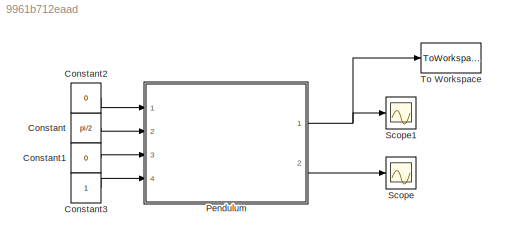
MODEL slx_9961b712eaad
KIND model
CONFIG AbsTol = auto
CONFIG EnableMultiTasking = off
CONFIG FixedStep = auto
CONFIG MaxStep = auto
CONFIG MinStep = auto
CONFIG RelTol = 1e-3
CONFIG SampleTimeConstraint = Unconstrained
CONFIG Solver = VariableStepAuto
CONFIG SolverName = VariableStepAuto
CONFIG StartTime = 0.0
CONFIG StopTime = 15
BLOCK [Constant] Constant
  Value = pi/2
BLOCK [Constant] Constant1
  Value = 0
BLOCK [Constant] Constant2
  Value = 0
BLOCK [Constant] Constant3
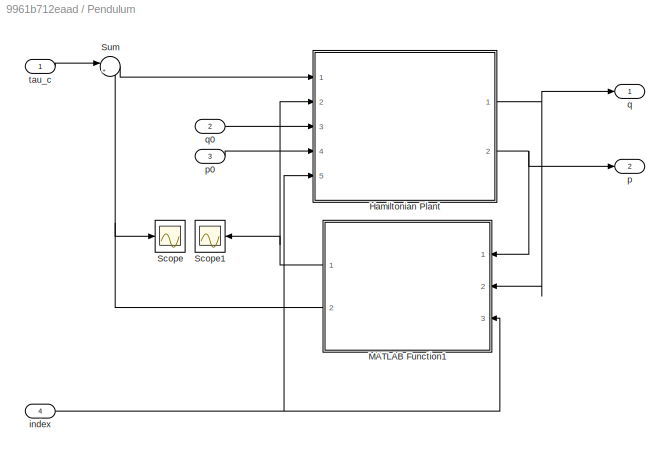
BLOCK [SubSystem] Pendulum
  Ports = [4, 2]
  RequestExecContextInheritance = off
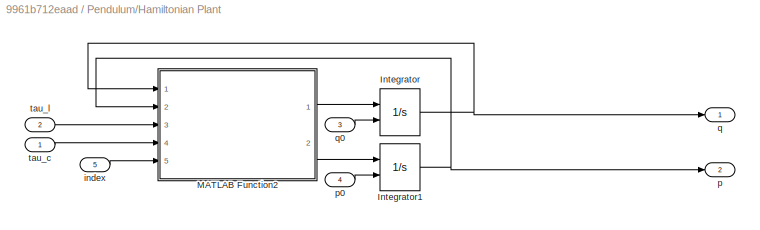
BLOCK [SubSystem] Pendulum/Hamiltonian Plant
  Ports = [5, 2]
  RequestExecContextInheritance = off
BLOCK [Integrator] Pendulum/Hamiltonian Plant/Integrator
  InitialCondition = q01
  InitialConditionSource = external
  Ports = [2, 1]
BLOCK [Integrator] Pendulum/Hamiltonian Plant/Integrator1
  InitialCondition = p02
  InitialConditionSource = external
  Ports = [2, 1]
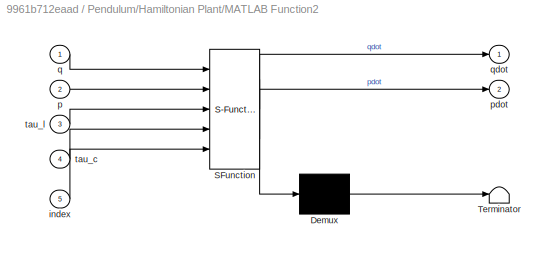
BLOCK [SubSystem] Pendulum/Hamiltonian Plant/MATLAB Function2
  ErrorFcn = Stateflow.Translate.translate
  PermitHierarchicalResolution = ExplicitOnly
  Ports = [5, 2]
  RequestExecContextInheritance = off
  SFBlockType = MATLAB Function
  TreatAsAtomicUnit = on
BLOCK [Demux] Pendulum/Hamiltonian Plant/MATLAB Function2/ Demux 
  Outputs = 1
  Ports = [1, 1]
BLOCK [S-Function] Pendulum/Hamiltonian Plant/MATLAB Function2/ SFunction 
  EnableBusSupport = on
  FunctionName = sf_sfun
  PortCounts = [5 3]
  Ports = [5, 3]
  SFcnIsStateOwnerBlock = off
  SFunctionDeploymentMode = off
  Tag = Stateflow S-Function SingleAgent_Pendulum 11
BLOCK [Terminator] Pendulum/Hamiltonian Plant/MATLAB Function2/ Terminator 
BLOCK [Inport] Pendulum/Hamiltonian Plant/MATLAB Function2/index
  IconDisplay = Port number
  Port = 5
BLOCK [Inport] Pendulum/Hamiltonian Plant/MATLAB Function2/p
  IconDisplay = Port number
  Port = 2
BLOCK [Outport] Pendulum/Hamiltonian Plant/MATLAB Function2/pdot
  IconDisplay = Port number
  Port = 2
BLOCK [Inport] Pendulum/Hamiltonian Plant/MATLAB Function2/q
  IconDisplay = Port number
BLOCK [Outport] Pendulum/Hamiltonian Plant/MATLAB Function2/qdot
  IconDisplay = Port number
BLOCK [Inport] Pendulum/Hamiltonian Plant/MATLAB Function2/tau_c
  IconDisplay = Port number
  Port = 4
BLOCK [Inport] Pendulum/Hamiltonian Plant/MATLAB Function2/tau_l
  IconDisplay = Port number
  Port = 3
BLOCK [Inport] Pendulum/Hamiltonian Plant/index
  IconDisplay = Port number
  Port = 5
BLOCK [Outport] Pendulum/Hamiltonian Plant/p
  IconDisplay = Port number
  Port = 2
BLOCK [Inport] Pendulum/Hamiltonian Plant/p0
  IconDisplay = Port number
  Port = 4
BLOCK [Outport] Pendulum/Hamiltonian Plant/q
  IconDisplay = Port number
BLOCK [Inport] Pendulum/Hamiltonian Plant/q0
  IconDisplay = Port number
  Port = 3
BLOCK [Inport] Pendulum/Hamiltonian Plant/tau_c
  IconDisplay = Port number
BLOCK [Inport] Pendulum/Hamiltonian Plant/tau_l
  IconDisplay = Port number
  Port = 2
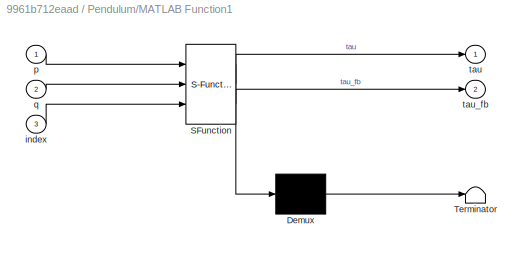
BLOCK [SubSystem] Pendulum/MATLAB Function1
  ErrorFcn = Stateflow.Translate.translate
  PermitHierarchicalResolution = ExplicitOnly
  Ports = [3, 2]
  RequestExecContextInheritance = off
  SFBlockType = MATLAB Function
  TreatAsAtomicUnit = on
BLOCK [Demux] Pendulum/MATLAB Function1/ Demux 
  Outputs = 1
  Ports = [1, 1]
BLOCK [S-Function] Pendulum/MATLAB Function1/ SFunction 
  EnableBusSupport = on
  FunctionName = sf_sfun
  PortCounts = [3 3]
  Ports = [3, 3]
  SFcnIsStateOwnerBlock = off
  SFunctionDeploymentMode = off
  Tag = Stateflow S-Function SingleAgent_Pendulum 13
BLOCK [Terminator] Pendulum/MATLAB Function1/ Terminator 
BLOCK [Inport] Pendulum/MATLAB Function1/index
  IconDisplay = Port number
  Port = 3
BLOCK [Inport] Pendulum/MATLAB Function1/p
  IconDisplay = Port number
BLOCK [Inport] Pendulum/MATLAB Function1/q
  IconDisplay = Port number
  Port = 2
BLOCK [Outport] Pendulum/MATLAB Function1/tau
  IconDisplay = Port number
BLOCK [Outport] Pendulum/MATLAB Function1/tau_fb
  IconDisplay = Port number
  Port = 2
BLOCK [Scope] Pendulum/Scope
  Floating = off
  NumInputPorts = 1
  Ports = [1]
  ScopeSpecificationString = Simulink.scopes.TimeScopeBlockCfg('CurrentConfiguration', extmgr.ConfigurationSet(extmgr.Configuration('Core','General UI',true),extmgr.Configuration('Core','Source UI',true),extmgr.Configuration('Sources','WiredSimulink',true,'DataLoggingVariableName','ScopeData1'),extmgr.Configuration('Visuals','Time Domain',true,'SerializedDisplays',{struct('MinYLimReal','-1.00000','MaxYLimReal','1.00000','YLab...<+1412ch>
BLOCK [Scope] Pendulum/Scope1
  Floating = off
  NumInputPorts = 1
  Ports = [1]
  ScopeSpecificationString = Simulink.scopes.TimeScopeBlockCfg('CurrentConfiguration', extmgr.ConfigurationSet(extmgr.Configuration('Core','General UI',true),extmgr.Configuration('Core','Source UI',true),extmgr.Configuration('Sources','WiredSimulink',true,'DataLoggingVariableName','ScopeData2'),extmgr.Configuration('Visuals','Time Domain',true,'SerializedDisplays',{struct('MinYLimReal','-4.06585','MaxYLimReal','0.88467','YLab...<+1408ch>
BLOCK [Sum] Pendulum/Sum
  IconShape = round
  InputSameDT = off
  Inputs = |++
  OutDataTypeStr = Inherit: Inherit via internal rule
  Ports = [2, 1]
  SaturateOnIntegerOverflow = off
BLOCK [Inport] Pendulum/index
  IconDisplay = Port number
  Port = 4
BLOCK [Outport] Pendulum/p
  IconDisplay = Port number
  Port = 2
BLOCK [Inport] Pendulum/p0
  IconDisplay = Port number
  Port = 3
BLOCK [Outport] Pendulum/q
  IconDisplay = Port number
BLOCK [Inport] Pendulum/q0
  IconDisplay = Port number
  Port = 2
BLOCK [Inport] Pendulum/tau_c
  IconDisplay = Port number
BLOCK [Scope] Scope
  Floating = off
  NumInputPorts = 1
  Ports = [1]
  ScopeSpecificationString = Simulink.scopes.TimeScopeBlockCfg('CurrentConfiguration', extmgr.ConfigurationSet(extmgr.Configuration('Core','General UI',true),extmgr.Configuration('Core','Source UI',true),extmgr.Configuration('Sources','WiredSimulink',true),extmgr.Configuration('Visuals','Time Domain',true,'SerializedDisplays',{struct('MinYLimReal','-25.0076','MaxYLimReal','7.22307','YLabelReal','','MinYLimMag','0.00000','MaxY...<+1416ch>
BLOCK [Scope] Scope1
  Floating = off
  NumInputPorts = 1
  Ports = [1]
  ScopeSpecificationString = Simulink.scopes.TimeScopeBlockCfg('CurrentConfiguration', extmgr.ConfigurationSet(extmgr.Configuration('Core','General UI',true),extmgr.Configuration('Core','Source UI',true),extmgr.Configuration('Sources','WiredSimulink',true,'DataLoggingVariableName','ScopeData1'),extmgr.Configuration('Visuals','Time Domain',true,'SerializedDisplays',{struct('MinYLimReal','-1.15215','MaxYLimReal','1.87335','YLab...<+1424ch>
BLOCK [ToWorkspace] To Workspace
  FixptAsFi = on
  MaxDataPoints = inf
  Ports = [1]
  SampleTime = -1
  Save2DSignal = 3-D array (concatenate along third dimension)
  SaveFormat = Timeseries
  VariableName = q
LINE Constant1:1 -> Pendulum:3
LINE Constant2:1 -> Pendulum:1
LINE Constant3:1 -> Pendulum:4
LINE Constant:1 -> Pendulum:2
NET Pendulum/Hamiltonian Plant/Integrator1:1 -> Pendulum/Hamiltonian Plant/MATLAB Function2:2, Pendulum/Hamiltonian Plant/p:1
NET Pendulum/Hamiltonian Plant/Integrator:1 -> Pendulum/Hamiltonian Plant/MATLAB Function2:1, Pendulum/Hamiltonian Plant/q:1
LINE Pendulum/Hamiltonian Plant/MATLAB Function2:1 -> Pendulum/Hamiltonian Plant/Integrator:1
LINE Pendulum/Hamiltonian Plant/MATLAB Function2:2 -> Pendulum/Hamiltonian Plant/Integrator1:1
LINE Pendulum/Hamiltonian Plant/index:1 -> Pendulum/Hamiltonian Plant/MATLAB Function2:5
LINE Pendulum/Hamiltonian Plant/p0:1 -> Pendulum/Hamiltonian Plant/Integrator1:2
LINE Pendulum/Hamiltonian Plant/q0:1 -> Pendulum/Hamiltonian Plant/Integrator:2
LINE Pendulum/Hamiltonian Plant/tau_c:1 -> Pendulum/Hamiltonian Plant/MATLAB Function2:4
LINE Pendulum/Hamiltonian Plant/tau_l:1 -> Pendulum/Hamiltonian Plant/MATLAB Function2:3
NET Pendulum/Hamiltonian Plant:1 -> Pendulum/MATLAB Function1:2, Pendulum/q:1
NET Pendulum/Hamiltonian Plant:2 -> Pendulum/MATLAB Function1:1, Pendulum/p:1
NET Pendulum/MATLAB Function1:1 -> Pendulum/Hamiltonian Plant:2, Pendulum/Scope1:1
NET Pendulum/MATLAB Function1:2 -> Pendulum/Scope:1, Pendulum/Sum:2
LINE Pendulum/Sum:1 -> Pendulum/Hamiltonian Plant:1
NET Pendulum/index:1 -> Pendulum/Hamiltonian Plant:5, Pendulum/MATLAB Function1:3
LINE Pendulum/p0:1 -> Pendulum/Hamiltonian Plant:4
LINE Pendulum/q0:1 -> Pendulum/Hamiltonian Plant:3
LINE Pendulum/tau_c:1 -> Pendulum/Sum:1
NET Pendulum:1 -> Scope1:1, To Workspace:1
LINE Pendulum:2 -> Scope:1
note: NET lines group one-source signal fan-out (src -> all destinations, sorted); 1:1 wires keep LINE
CHART Pendulum/Hamiltonian Plant/MATLAB Function2 states=1 transitions=1
  STATE_LABEL 'eML_blk_kernel()'
  STATE_LABEL "SCRIPT:\nfunction [qdot, pdot] = fcn(q, p, tau_l, tau_c, index)\n\n    coder.extrinsic('Pendulum_Dynamics');\n    qdot = 0;\n    pdot = 0;\n    [qdot, pdot] = Pendulum_Dynamics(q, p, tau_l, tau_c, index);\n"
CHART Pendulum/MATLAB Function1 states=1 transitions=1
  STATE_LABEL 'eML_blk_kernel()'
  STATE_LABEL "SCRIPT:\nfunction [tau, tau_fb] = LocalControl(p, q, index)\n    \n\ncoder.extrinsic('Pendulum_Control');\ntau = 0;\ntau_fb = 0;\n[tau, tau_fb] = Pendulum_Control(q, p, index);\n\n"
